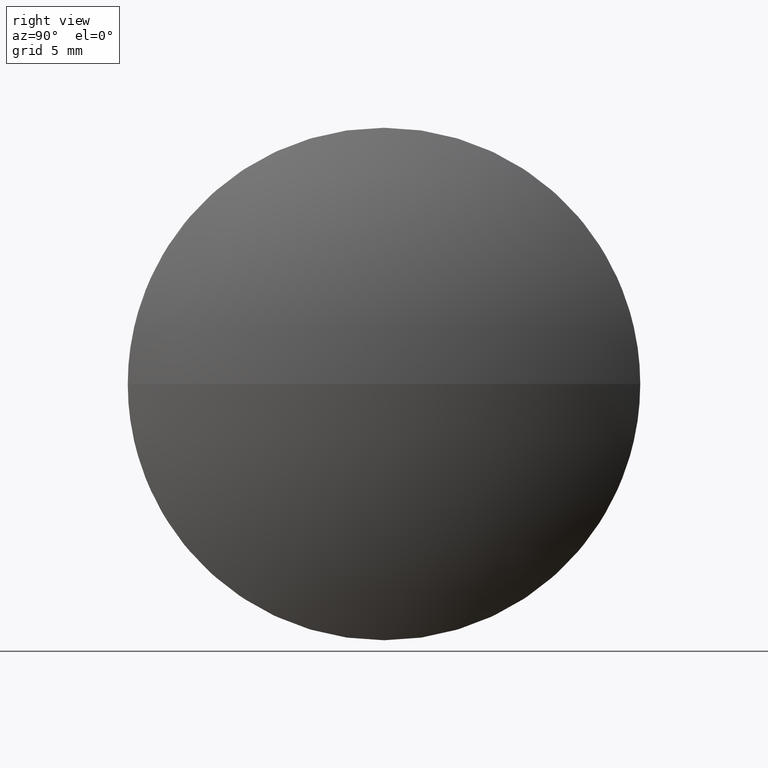
[diagram: clean part render]
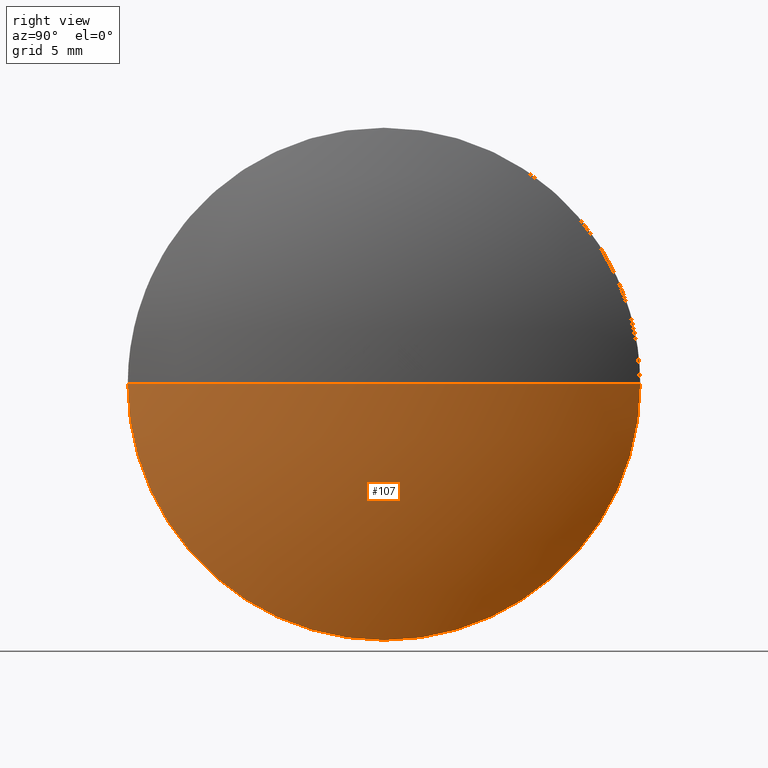
[diagram: same view with one face highlighted and labeled with its STEP entity id]
A machine part, right view. The second image highlights one B-rep face of the part: STEP entity #107.
In plain terms, the highlighted spherical surface has radius 41.2697 mm.
Its self-contained STEP definition (entity closure, byte-faithful):
#6 = DIRECTION ( 'NONE',  ( -1.000000000000000000, -0.0000000000000000000, -0.0000000000000000000 ) ) ;
#7 = EDGE_CURVE ( 'NONE', #62, #123, #168, .T. ) ;
#8 = CARTESIAN_POINT ( 'NONE',  ( 499.6385831728898700, 143.4929616837899900, -19.99999999999998900 ) ) ;
#13 = AXIS2_PLACEMENT_3D ( 'NONE', #66, #176, #124 ) ;
#18 = CARTESIAN_POINT ( 'NONE',  ( 463.5388636371064900, 143.4929616837899600, 0.0000000000000000000 ) ) ;
#26 = EDGE_CURVE ( 'NONE', #181, #37, #99, .T. ) ;
#29 = EDGE_CURVE ( 'NONE', #62, #37, #96, .T. ) ;
#35 = CARTESIAN_POINT ( 'NONE',  ( 499.6385831728898700, 163.4929616837899900, 0.0000000000000000000 ) ) ;
#37 = VERTEX_POINT ( 'NONE', #49 ) ;
#42 = DIRECTION ( 'NONE',  ( -0.0000000000000000000, 0.0000000000000000000, -1.000000000000000000 ) ) ;
#47 = ORIENTED_EDGE ( 'NONE', *, *, #29, .T. ) ;
#49 = CARTESIAN_POINT ( 'NONE',  ( 499.6385831728898700, 123.4929616837899900, -2.449293598294705700E-015 ) ) ;
#50 = ORIENTED_EDGE ( 'NONE', *, *, #148, .F. ) ;
#57 = CIRCLE ( 'NONE', #165, 19.99999999999998900 ) ;
#62 = VERTEX_POINT ( 'NONE', #141 ) ;
#63 = EDGE_LOOP ( 'NONE', ( #112, #47, #117, #50 ) ) ;
#66 = CARTESIAN_POINT ( 'NONE',  ( 463.5388636371064900, 143.4929616837899600, 0.0000000000000000000 ) ) ;
#71 = CARTESIAN_POINT ( 'NONE',  ( 463.5388636371064900, 143.4929616837899600, 0.0000000000000000000 ) ) ;
#81 = AXIS2_PLACEMENT_3D ( 'NONE', #156, #6, #102 ) ;
#96 = CIRCLE ( 'NONE', #119, 41.26971953578340200 ) ;
#97 = CARTESIAN_POINT ( 'NONE',  ( 499.6385831728898700, 143.4929616837899900, 0.0000000000000000000 ) ) ;
#99 = CIRCLE ( 'NONE', #81, 19.99999999999998900 ) ;
#102 = DIRECTION ( 'NONE',  ( 0.0000000000000000000, 0.0000000000000000000, 1.000000000000000000 ) ) ;
#103 = DIRECTION ( 'NONE',  ( 0.0000000000000000000, 1.224646799147353200E-016, -1.000000000000000000 ) ) ;
#107 = ADVANCED_FACE ( 'NONE', ( #172 ), #121, .T. ) ;
#112 = ORIENTED_EDGE ( 'NONE', *, *, #7, .F. ) ;
#117 = ORIENTED_EDGE ( 'NONE', *, *, #26, .F. ) ;
#119 = AXIS2_PLACEMENT_3D ( 'NONE', #18, #103, #139 ) ;
#121 = SPHERICAL_SURFACE ( 'NONE', #163, 41.26971953578340200 ) ;
#123 = VERTEX_POINT ( 'NONE', #35 ) ;
#124 = DIRECTION ( 'NONE',  ( 1.000000000000000000, 0.0000000000000000000, 0.0000000000000000000 ) ) ;
#130 = DIRECTION ( 'NONE',  ( 0.0000000000000000000, 0.0000000000000000000, 1.000000000000000000 ) ) ;
#139 = DIRECTION ( 'NONE',  ( 0.0000000000000000000, 1.000000000000000000, 1.224646799147353200E-016 ) ) ;
#141 = CARTESIAN_POINT ( 'NONE',  ( 504.8085831728898800, 143.4929616837899600, 0.0000000000000000000 ) ) ;
#142 = DIRECTION ( 'NONE',  ( -1.000000000000000000, -0.0000000000000000000, -0.0000000000000000000 ) ) ;
#145 = DIRECTION ( 'NONE',  ( 0.0000000000000000000, 1.000000000000000000, 0.0000000000000000000 ) ) ;
#148 = EDGE_CURVE ( 'NONE', #123, #181, #57, .T. ) ;
#156 = CARTESIAN_POINT ( 'NONE',  ( 499.6385831728898700, 143.4929616837899900, 0.0000000000000000000 ) ) ;
#163 = AXIS2_PLACEMENT_3D ( 'NONE', #71, #42, #145 ) ;
#165 = AXIS2_PLACEMENT_3D ( 'NONE', #97, #142, #130 ) ;
#168 = CIRCLE ( 'NONE', #13, 41.26971953578340200 ) ;
#172 = FACE_OUTER_BOUND ( 'NONE', #63, .T. ) ;
#176 = DIRECTION ( 'NONE',  ( -0.0000000000000000000, 0.0000000000000000000, 1.000000000000000000 ) ) ;
#181 = VERTEX_POINT ( 'NONE', #8 ) ;